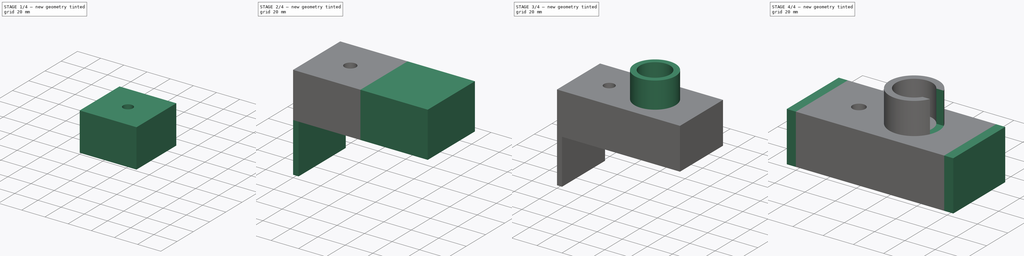
[diagram: build sequence overview — one tinted view per stage of 4, left to right]
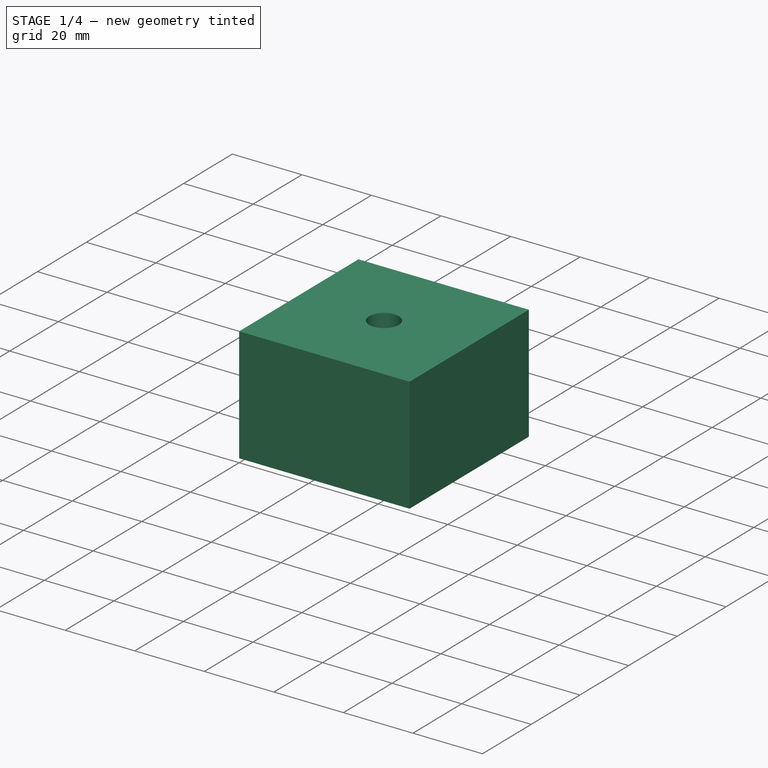
[diagram: stage 1 of 4 — iso view after this stage's code; geometry added in this stage tinted green]
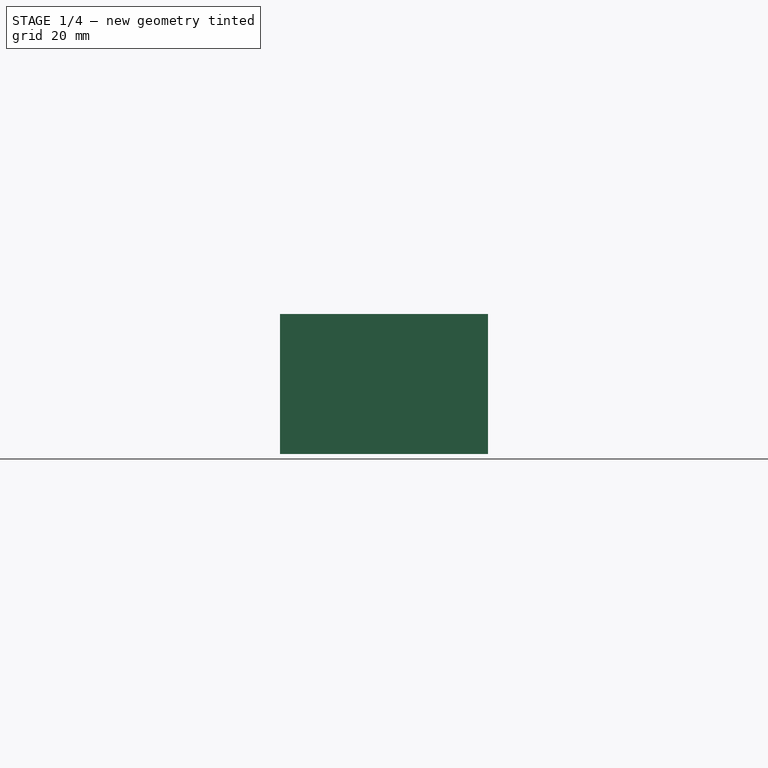
[diagram: stage 1 of 4 — front view after this stage's code; geometry added in this stage tinted green]
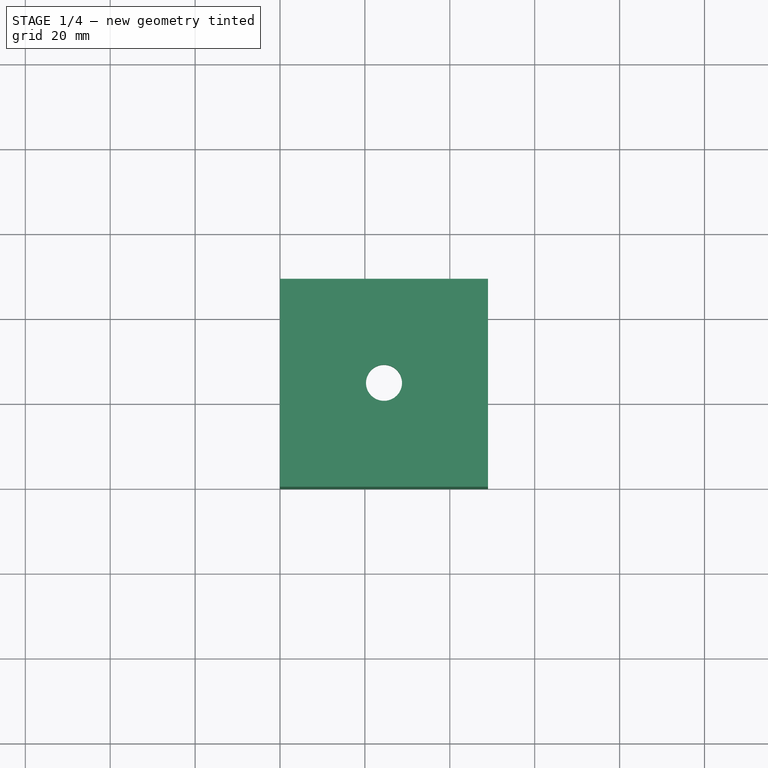
[diagram: stage 1 of 4 — top view after this stage's code; geometry added in this stage tinted green]
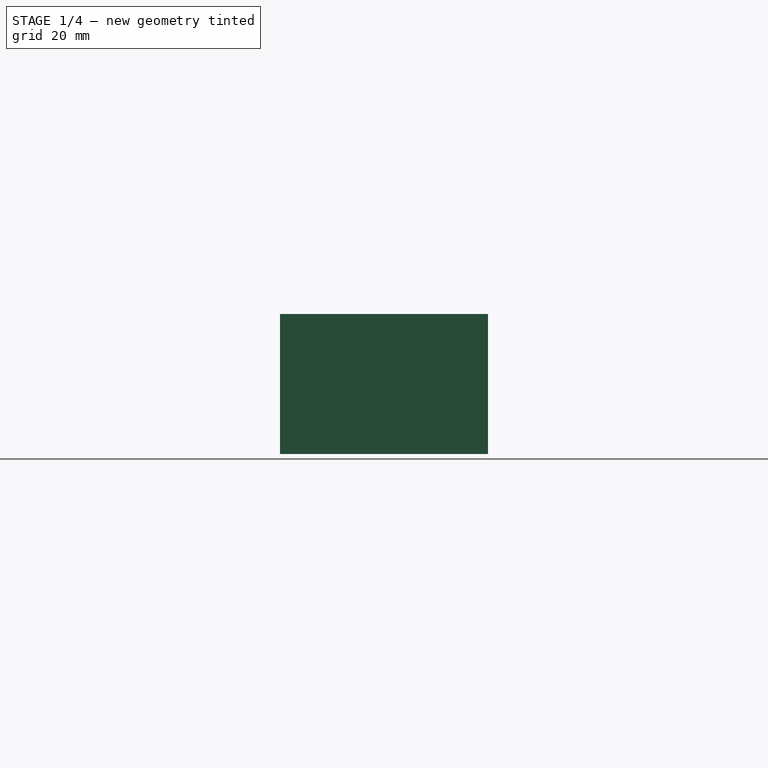
[diagram: stage 1 of 4 — right view after this stage's code; geometry added in this stage tinted green]
FCSTD DOCUMENT  (FreeCAD 0.18R4 (GitTag))
Label: Caja para engranes 1
License: All rights reserved
LicenseURL: http://en.wikipedia.org/wiki/All_rights_reserved
objects: Sketcher::SketchObject×14, PartDesign::Pocket×6, PartDesign::Pad×5, PartDesign::Body×1
note: 37 computed .brp shape members not serialized (recipe doc carries the construction recipe); baked Part::Feature solids carry a one-line shape summary decoded from their .brp

FEATURE [Sketcher::SketchObject] Sketch
  MapMode = 5
  Support = -> [XY_Plane]
  sketch-geometry (4):
    g0: LineSegment StartX=0 StartY=0 StartZ=0 EndX=49 EndY=0 EndZ=0
    g1: LineSegment StartX=49 StartY=0 StartZ=0 EndX=49 EndY=49 EndZ=0
    g2: LineSegment StartX=49 StartY=49 StartZ=0 EndX=0 EndY=49 EndZ=0
    g3: LineSegment StartX=0 StartY=49 StartZ=0 EndX=0 EndY=0 EndZ=0
  constraints (11):
    c: Coincident(g0,g1)
    c: Coincident(g1,g2)
    c: Coincident(g2,g3)
    c: Coincident(g3,g0)
    c: Horizontal(g0)
    c: Horizontal(g2)
    c: Vertical(g1)
    c: Vertical(g3)
    c: DistanceX(g0,g0) = 49
    c: DistanceY(g1,g1) = 49
    c: Coincident(g0,g-1)
FEATURE [PartDesign::Pad] Pad
  Length = 33
  Length2 = 100
  Profile = -> Sketch
  Type = 0
  expr: Length = 28 + 5
FEATURE [Sketcher::SketchObject] Sketch001
  ExternalGeometry = -> [Pad]
  MapMode = 5
  Placement = pos=(0,0,0) rot=(1,0,0;3.14159rad)
  Support = -> [Pad]
  sketch-geometry (6):
    g0: LineSegment StartX=45 StartY=-4 StartZ=0 EndX=4 EndY=-4 EndZ=0
    g1: LineSegment StartX=4 StartY=-4 StartZ=0 EndX=4 EndY=-45 EndZ=0
    g2: LineSegment StartX=4 StartY=-45 StartZ=0 EndX=45 EndY=-45 EndZ=0
    g3: LineSegment StartX=45 StartY=-45 StartZ=0 EndX=45 EndY=-4 EndZ=0
    g4: Circle [constr] CenterX=24.5 CenterY=-24.5 CenterZ=0 NormalX=0 NormalY=0 NormalZ=1 AngleXU=0 Radius=28.9914
    g5: Circle [constr] CenterX=24.5 CenterY=-24.5 CenterZ=0 NormalX=0 NormalY=0 NormalZ=1 AngleXU=0 Radius=34.6482
  constraints (17):
    c: Coincident(g0,g1)
    c: Coincident(g1,g2)
    c: Coincident(g2,g3)
    c: Coincident(g3,g0)
    c: Equal(g0,g1)
    c: Equal(g0,g2)
    c: Equal(g0,g3)
    c: PointOnObject(g0,g4)
    c: PointOnObject(g1,g4)
    c: PointOnObject(g2,g4)
    c: PointOnObject(g3,g4)
    c: Vertical(g3)
    c: DistanceX(g2,g2) = 41
    c: PointOnObject(g-4,g5)
    c: PointOnObject(g-3,g5)
    c: PointOnObject(g-1,g5)
    c: Coincident(g5,g4)
FEATURE [PartDesign::Pocket] Pocket
  BaseFeature = -> Pad
  Length = 28
  Length2 = 100
  Profile = -> Sketch001
  Type = 0
FEATURE [Sketcher::SketchObject] Sketch004
  MapMode = 5
  Placement = pos=(0,0,33) rot=(0,0,1;0rad)
  sketch-geometry (2):
    g0: Circle [constr] CenterX=24.5 CenterY=24.5 CenterZ=0 NormalX=0 NormalY=0 NormalZ=1 AngleXU=0 Radius=34.6482
    g1: Circle CenterX=24.5 CenterY=24.5 CenterZ=0 NormalX=0 NormalY=0 NormalZ=1 AngleXU=0 Radius=4.25
  constraints (2):
    c: PointOnObject(g-1,g0)
    c: Radius(g1) = 4.25
FEATURE [PartDesign::Pocket] Pocket002
  BaseFeature = -> Pocket
  Length = 5
  Length2 = 100
  Profile = -> Sketch004
  Type = 0
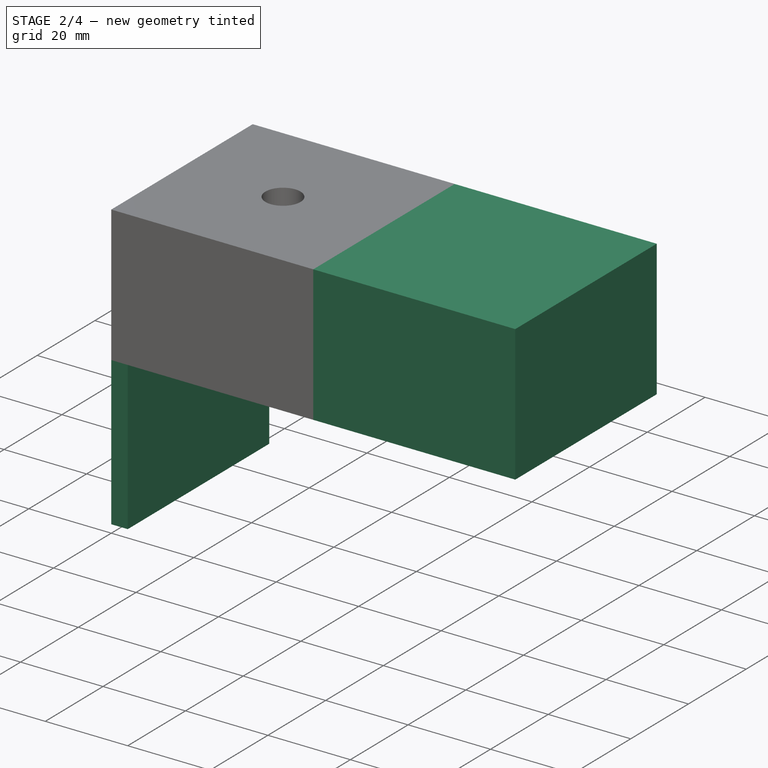
[diagram: stage 2 of 4 — iso view after this stage's code; geometry added in this stage tinted green]
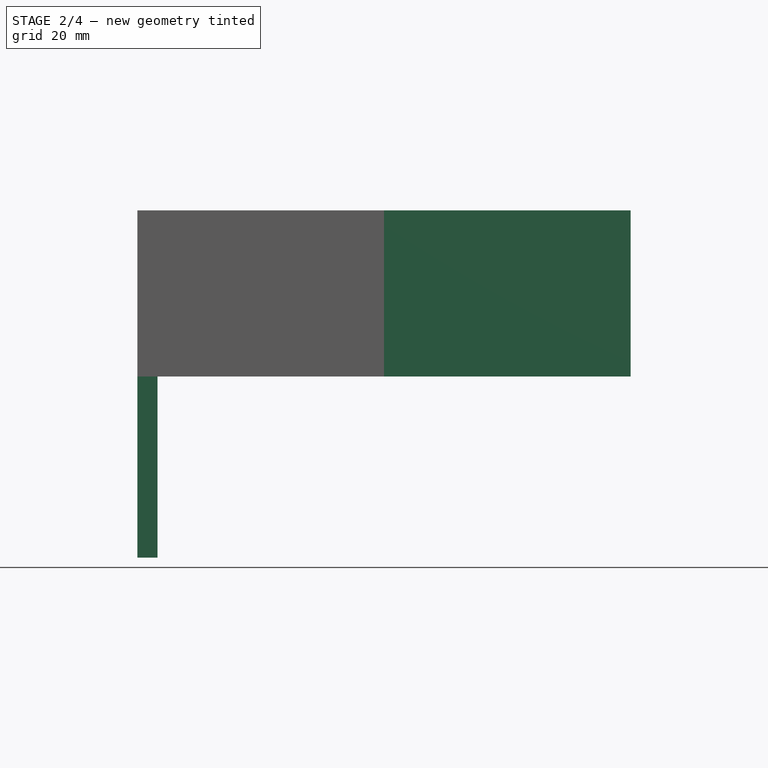
[diagram: stage 2 of 4 — front view after this stage's code; geometry added in this stage tinted green]
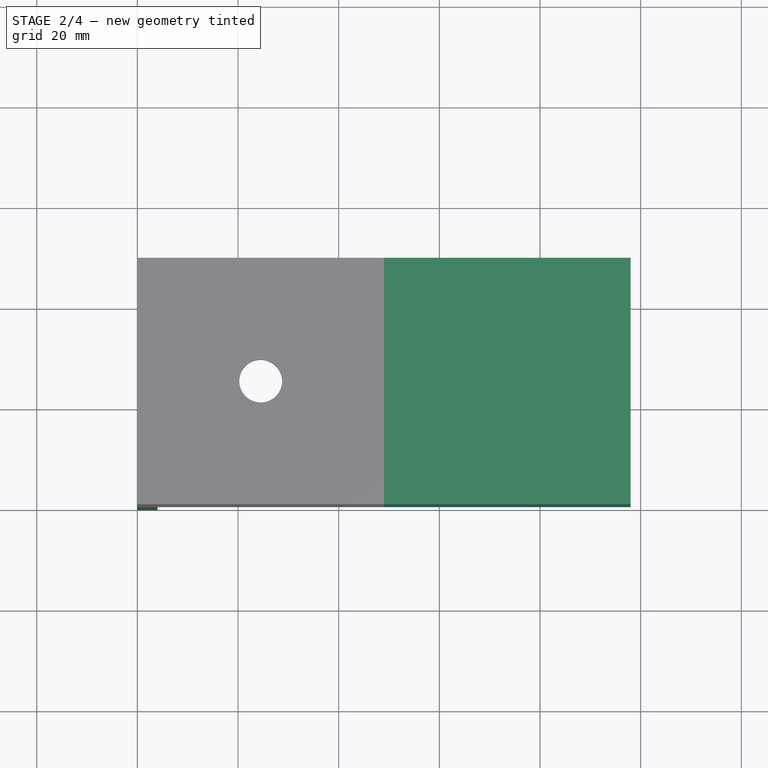
[diagram: stage 2 of 4 — top view after this stage's code; geometry added in this stage tinted green]
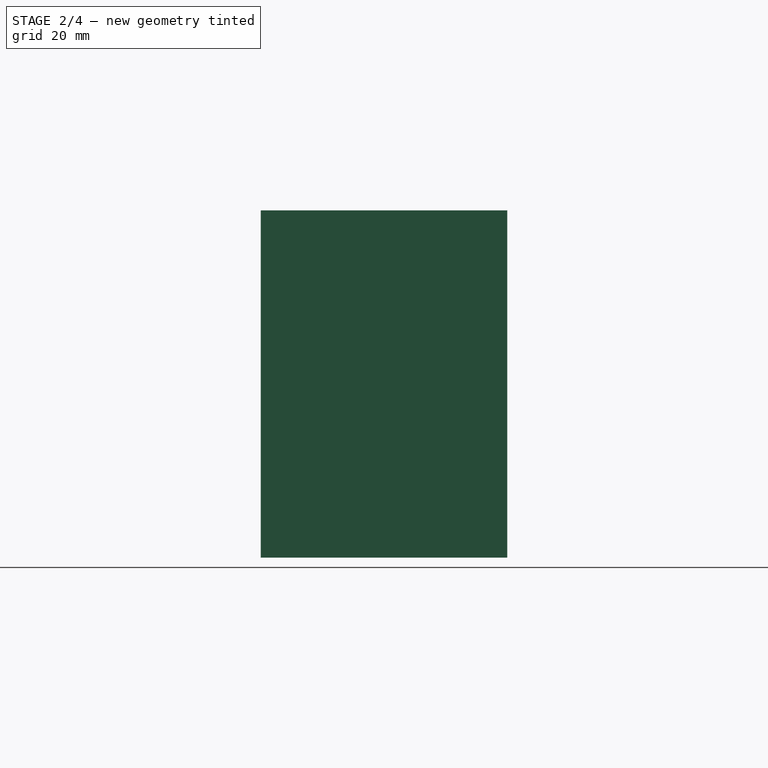
[diagram: stage 2 of 4 — right view after this stage's code; geometry added in this stage tinted green]
FEATURE [Sketcher::SketchObject] Sketch006
  MapMode = 5
  Placement = pos=(0,0,0) rot=(1,0,0;3.14159rad)
  sketch-geometry (4):
    g0: LineSegment StartX=0 StartY=0 StartZ=0 EndX=4 EndY=0 EndZ=0
    g1: LineSegment StartX=4 StartY=0 StartZ=0 EndX=4 EndY=-49 EndZ=0
    g2: LineSegment StartX=4 StartY=-49 StartZ=0 EndX=0 EndY=-49 EndZ=0
    g3: LineSegment StartX=0 StartY=-49 StartZ=0 EndX=0 EndY=0 EndZ=0
  constraints (10):
    c: Coincident(g0,g1)
    c: Coincident(g1,g2)
    c: Coincident(g2,g3)
    c: Coincident(g3,g0)
    c: Horizontal(g0)
    c: Horizontal(g2)
    c: Vertical(g1)
    c: Vertical(g3)
    c: DistanceY(g3,g3) = 49
    c: Coincident(g0,g-1)
FEATURE [PartDesign::Pad] Pad001
  BaseFeature = -> Pocket002
  Length = 36
  Length2 = 100
  Profile = -> Sketch006
  Type = 0
FEATURE [Sketcher::SketchObject] Sketch007
  ExternalGeometry = -> [Pad001]
  MapMode = 5
  Placement = pos=(49,0,0) rot=(0.57735,0.57735,0.57735;2.0944rad)
  Support = -> [Pad001]
  sketch-geometry (4):
    g0: LineSegment StartX=0 StartY=0 StartZ=0 EndX=49 EndY=0 EndZ=0
    g1: LineSegment StartX=49 StartY=0 StartZ=0 EndX=49 EndY=33 EndZ=0
    g2: LineSegment StartX=49 StartY=33 StartZ=0 EndX=0 EndY=33 EndZ=0
    g3: LineSegment StartX=0 StartY=33 StartZ=0 EndX=0 EndY=0 EndZ=0
  constraints (8):
    c: Coincident(g0,g1)
    c: Coincident(g1,g2)
    c: Coincident(g2,g3)
    c: Coincident(g3,g0)
    c: Horizontal(g0)
    c: Horizontal(g2)
    c: Vertical(g1)
    c: Vertical(g3)
FEATURE [PartDesign::Pad] Pad002
  BaseFeature = -> Pad001
  Length = 49
  Length2 = 100
  Profile = -> Sketch007
  Type = 0
FEATURE [Sketcher::SketchObject] Sketch008
  ExternalGeometry = -> [Pad002]
  MapMode = 5
  Placement = pos=(0,0,0) rot=(1,0,0;3.14159rad)
  Support = -> [Pad002]
  sketch-geometry (6):
    g0: Circle [constr] CenterX=73.5 CenterY=-24.5 CenterZ=0 NormalX=0 NormalY=0 NormalZ=1 AngleXU=0 Radius=34.6482
    g1: LineSegment StartX=94 StartY=-4 StartZ=0 EndX=53 EndY=-4 EndZ=0
    g2: LineSegment StartX=53 StartY=-4 StartZ=0 EndX=53 EndY=-45 EndZ=0
    g3: LineSegment StartX=53 StartY=-45 StartZ=0 EndX=94 EndY=-45 EndZ=0
    g4: LineSegment StartX=94 StartY=-45 StartZ=0 EndX=94 EndY=-4 EndZ=0
    g5: Circle [constr] CenterX=73.5 CenterY=-24.5 CenterZ=0 NormalX=0 NormalY=0 NormalZ=1 AngleXU=0 Radius=28.9914
  constraints (17):
    c: PointOnObject(g-3,g0)
    c: PointOnObject(g-3,g0)
    c: PointOnObject(g-4,g0)
    c: Coincident(g1,g2)
    c: Coincident(g2,g3)
    c: Coincident(g3,g4)
    c: Coincident(g4,g1)
    c: Equal(g1,g2)
    c: Equal(g1,g3)
    c: Equal(g1,g4)
    c: PointOnObject(g1,g5)
    c: PointOnObject(g2,g5)
    c: PointOnObject(g3,g5)
    c: PointOnObject(g4,g5)
    c: Vertical(g4)
    c: Coincident(g0,g5)
    c: DistanceX(g3,g3) = 41
FEATURE [PartDesign::Pocket] Pocket003
  BaseFeature = -> Pad002
  Length = 28
  Length2 = 100
  Profile = -> Sketch008
  Type = 0
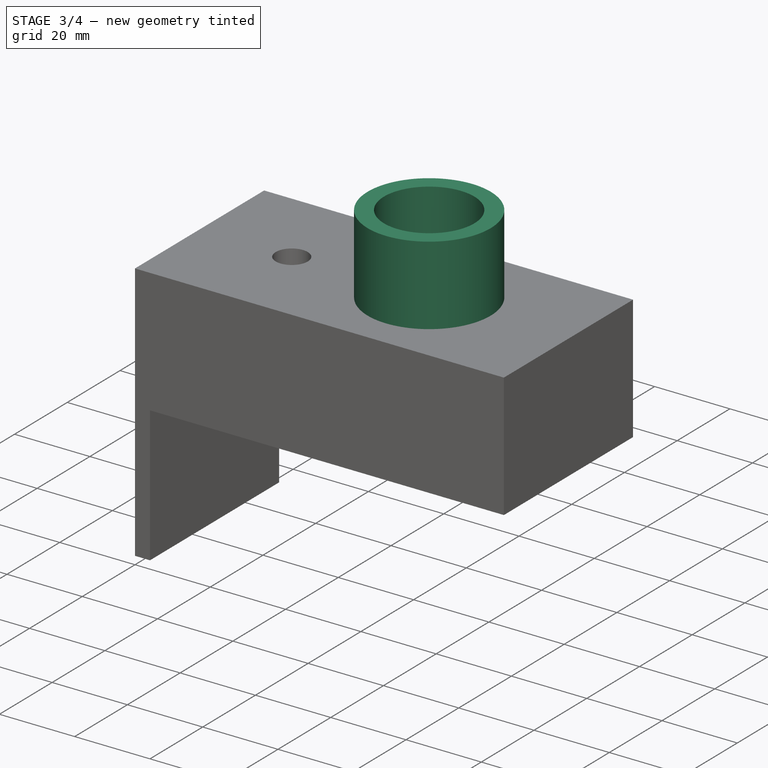
[diagram: stage 3 of 4 — iso view after this stage's code; geometry added in this stage tinted green]
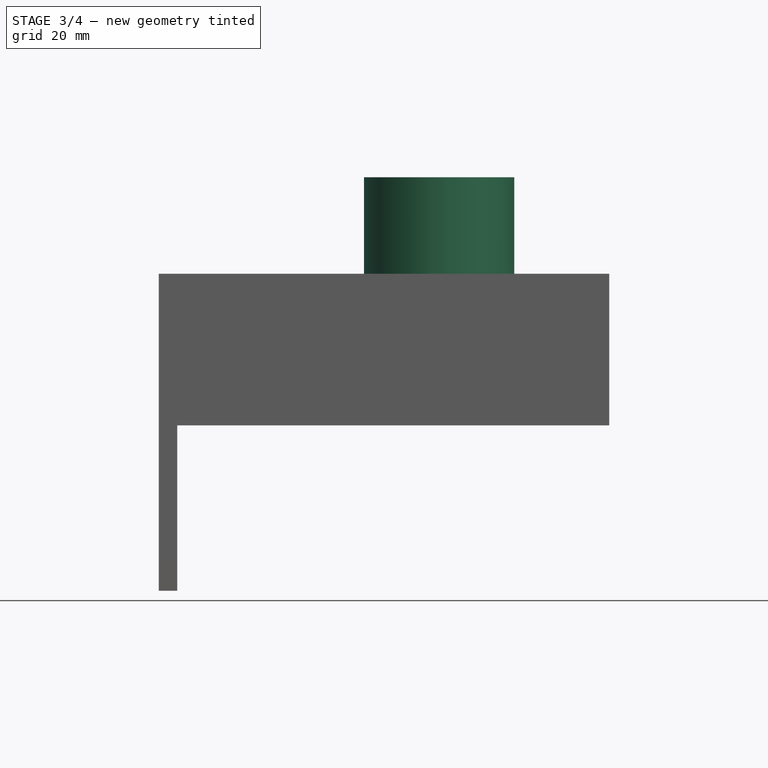
[diagram: stage 3 of 4 — front view after this stage's code; geometry added in this stage tinted green]
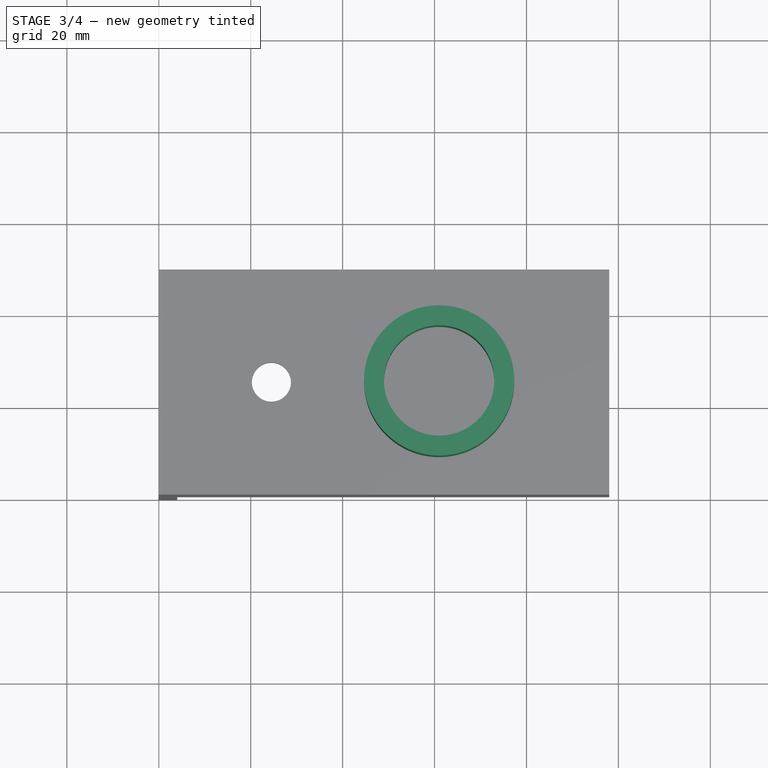
[diagram: stage 3 of 4 — top view after this stage's code; geometry added in this stage tinted green]
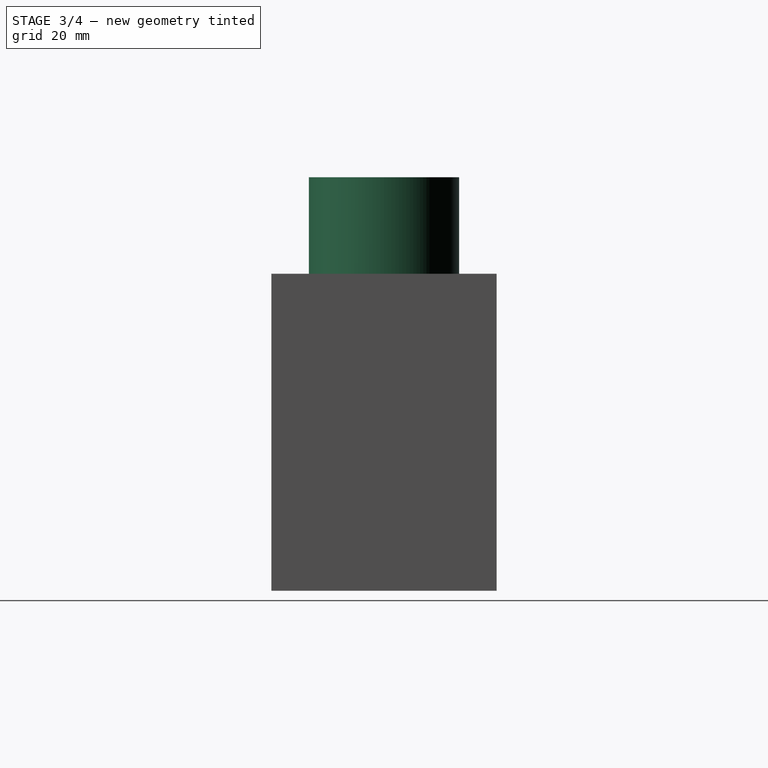
[diagram: stage 3 of 4 — right view after this stage's code; geometry added in this stage tinted green]
FEATURE [Sketcher::SketchObject] Sketch009
  ExternalGeometry = -> [Pocket003]
  MapMode = 5
  Placement = pos=(0,0,0) rot=(1,0,0;3.14159rad)
  Support = -> [Pocket003]
  sketch-geometry (4):
    g0: LineSegment StartX=45 StartY=-4 StartZ=0 EndX=53 EndY=-4 EndZ=0
    g1: LineSegment StartX=53 StartY=-4 StartZ=0 EndX=53 EndY=-45 EndZ=0
    g2: LineSegment StartX=53 StartY=-45 StartZ=0 EndX=45 EndY=-45 EndZ=0
    g3: LineSegment StartX=45 StartY=-45 StartZ=0 EndX=45 EndY=-4 EndZ=0
  constraints (10):
    c: Coincident(g0,g1)
    c: Coincident(g1,g2)
    c: Coincident(g2,g3)
    c: Coincident(g3,g0)
    c: Horizontal(g0)
    c: Horizontal(g2)
    c: Vertical(g1)
    c: Vertical(g3)
    c: Coincident(g-3,g0)
    c: Coincident(g1,g-4)
FEATURE [PartDesign::Pocket] Pocket004
  BaseFeature = -> Pocket003
  Length = 28
  Length2 = 100
  Profile = -> Sketch009
  Type = 0
FEATURE [Sketcher::SketchObject] Sketch010
  ExternalGeometry = -> [Pocket004]
  MapMode = 5
  Placement = pos=(0,0,33) rot=(0,0,1;0rad)
  Support = -> [Pocket004]
  sketch-geometry (2):
    g0: Circle [constr] CenterX=73.5 CenterY=24.5 CenterZ=0 NormalX=0 NormalY=0 NormalZ=1 AngleXU=0 Radius=34.6482
    g1: LineSegment [constr] StartX=73.5 StartY=25.8216 StartZ=0 EndX=41.7848 EndY=25.8216 EndZ=0
  constraints (4):
    c: PointOnObject(g-6,g0)
    c: PointOnObject(g-5,g0)
    c: PointOnObject(g-6,g0)
    c: Horizontal(g1)
FEATURE [Sketcher::SketchObject] Sketch011
  ExternalGeometry = -> [Pocket004]
  MapMode = 5
  Placement = pos=(0,0,33) rot=(0,0,1;0rad)
  Support = -> [Pocket004]
  expr: Constraints[4] = 49 / 2
  expr: Constraints[0] = 24 / 2
  sketch-geometry (4):
    g0: Circle CenterX=61 CenterY=24.5 CenterZ=0 NormalX=0 NormalY=0 NormalZ=1 AngleXU=0 Radius=12
    g1: Circle CenterX=61 CenterY=24.5 CenterZ=0 NormalX=0 NormalY=0 NormalZ=1 AngleXU=0 Radius=16.3474
    g2: LineSegment StartX=49 StartY=49 StartZ=0 EndX=49 EndY=24.5 EndZ=0
    g3: LineSegment [constr] StartX=49 StartY=24.5 StartZ=0 EndX=61 EndY=24.5 EndZ=0
  constraints (9):
    c: Radius(g0) = 12
    c: PointOnObject(g2,g-3)
    c: Coincident(g1,g0)
    c: Vertical(g2)
    c: DistanceY(g2,g2) = 24.5
    c: DistanceX(g3,g3) = 12
    c: Coincident(g3,g2)
    c: Horizontal(g3)
    c: Coincident(g0,g3)
FEATURE [PartDesign::Pad] Pad003
  BaseFeature = -> Pocket004
  Length = 21
  Length2 = 100
  Profile = -> Sketch011
  Type = 0
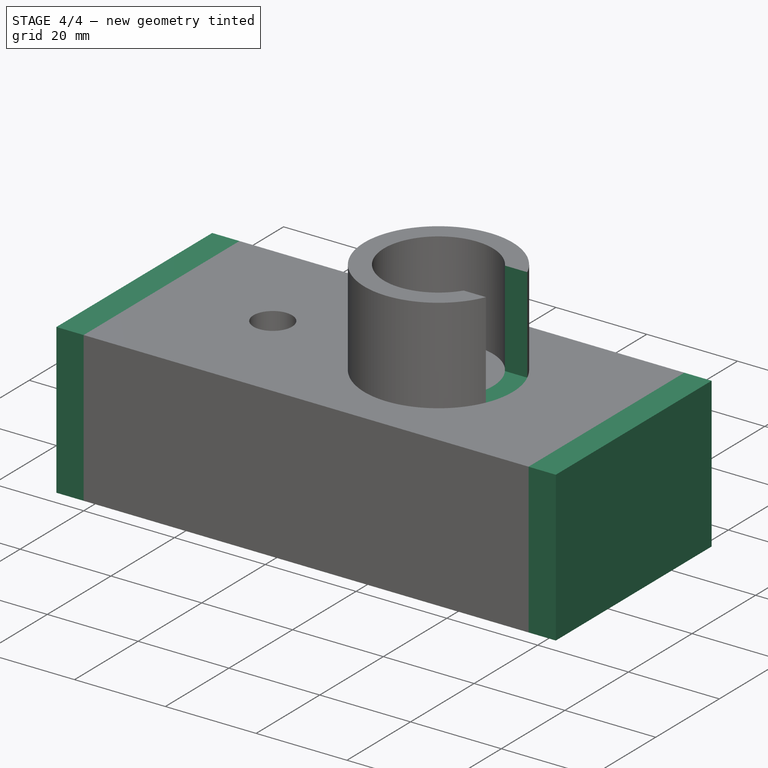
[diagram: stage 4 of 4 — iso view after this stage's code; geometry added in this stage tinted green]
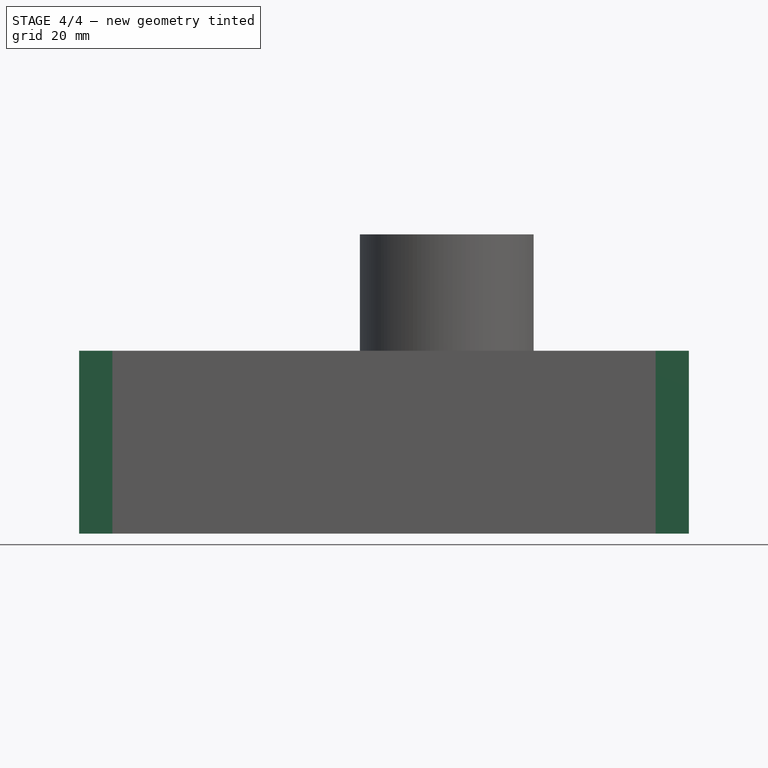
[diagram: stage 4 of 4 — front view after this stage's code; geometry added in this stage tinted green]
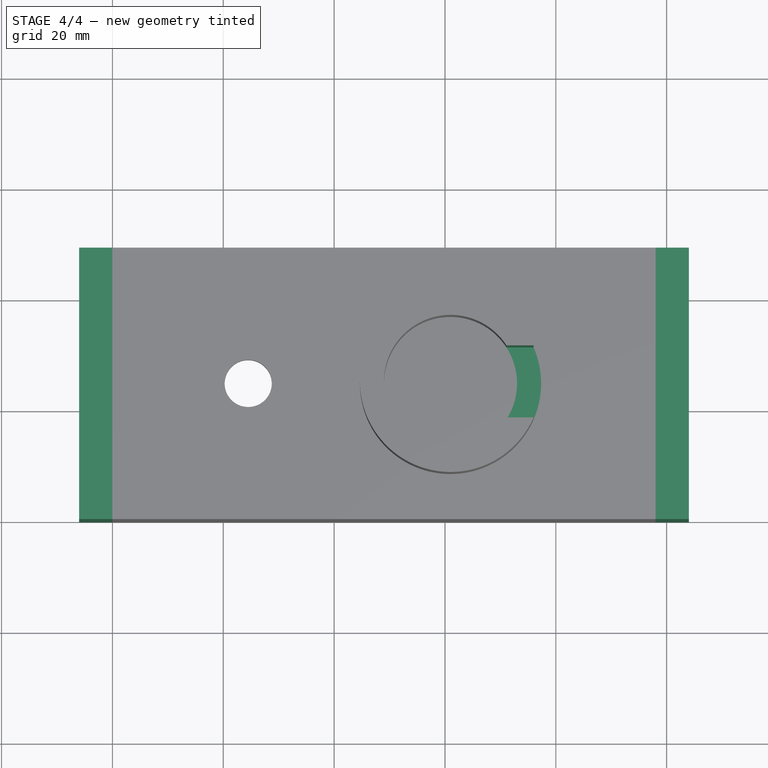
[diagram: stage 4 of 4 — top view after this stage's code; geometry added in this stage tinted green]
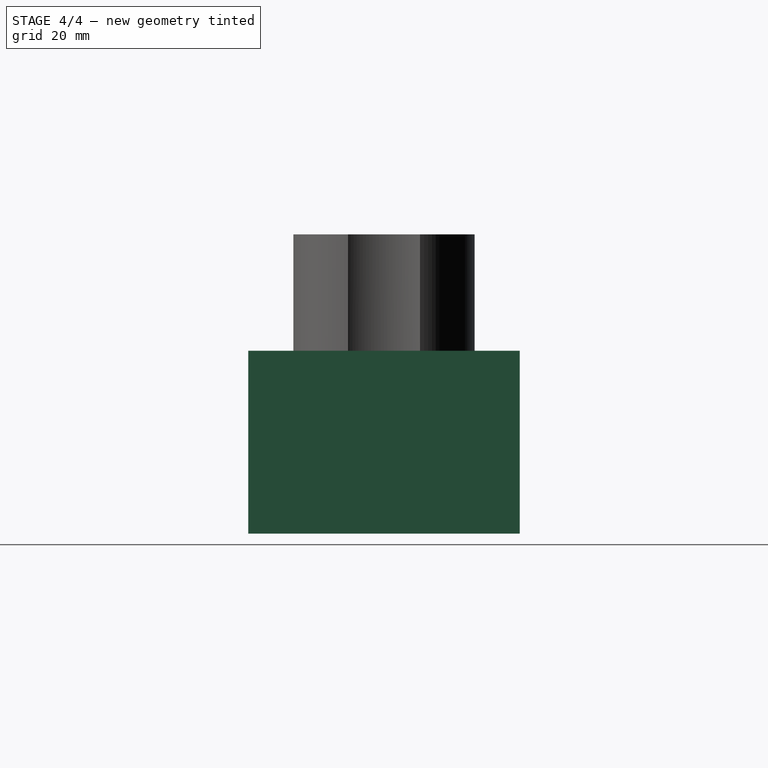
[diagram: stage 4 of 4 — right view after this stage's code; geometry added in this stage tinted green]
FEATURE [Sketcher::SketchObject] Sketch012
  ExternalGeometry = -> [Pad003]
  MapMode = 5
  Placement = pos=(0,0,33) rot=(0,0,1;0rad)
  Support = -> [Pad003]
  sketch-geometry (5):
    g0: LineSegment StartX=79.9801 StartY=31 StartZ=0 EndX=66.9801 EndY=31 EndZ=0
    g1: LineSegment StartX=66.9801 StartY=31 StartZ=0 EndX=66.9801 EndY=18 EndZ=0
    g2: LineSegment StartX=66.9801 StartY=18 StartZ=0 EndX=79.9801 EndY=18 EndZ=0
    g3: LineSegment StartX=79.9801 StartY=18 StartZ=0 EndX=79.9801 EndY=31 EndZ=0
    g4: Circle [constr] CenterX=73.4801 CenterY=24.5 CenterZ=0 NormalX=0 NormalY=0 NormalZ=1 AngleXU=0 Radius=9.19239
  constraints (14):
    c: Coincident(g0,g1)
    c: Coincident(g1,g2)
    c: Coincident(g2,g3)
    c: Coincident(g3,g0)
    c: Equal(g0,g1)
    c: Equal(g0,g2)
    c: Equal(g0,g3)
    c: PointOnObject(g0,g4)
    c: PointOnObject(g1,g4)
    c: PointOnObject(g2,g4)
    c: PointOnObject(g3,g4)
    c: Horizontal(g0)
    c: DistanceX(g0,g0) = 13
    c: DistanceY(g1,g-3) = 6.5
FEATURE [Sketcher::SketchObject] Sketch013
  MapMode = 5
  Placement = pos=(0,0,33) rot=(0,0,1;0rad)
  Support = -> [Pad003]
FEATURE [PartDesign::Pocket] Pocket005
  BaseFeature = -> Pad003
  Length = 22
  Length2 = 100
  Profile = -> Sketch012
  Reversed = true
  Type = 0
FEATURE [Sketcher::SketchObject] Sketch014
  MapMode = 5
  Placement = pos=(0,0,0) rot=(1,0,0;3.14159rad)
  Support = -> [Pocket005]
FEATURE [Sketcher::SketchObject] Sketch015
  ExternalGeometry = -> [Pocket005]
  MapMode = 5
  Placement = pos=(0,0,0) rot=(0.57735,-0.57735,-0.57735;2.0944rad)
  Support = -> [Pocket005]
  sketch-geometry (4):
    g0: LineSegment StartX=-49 StartY=-36 StartZ=0 EndX=0 EndY=-36 EndZ=0
    g1: LineSegment StartX=0 StartY=-36 StartZ=0 EndX=0 EndY=0 EndZ=0
    g2: LineSegment StartX=0 StartY=0 StartZ=0 EndX=-49 EndY=0 EndZ=0
    g3: LineSegment StartX=-49 StartY=0 StartZ=0 EndX=-49 EndY=-36 EndZ=0
  constraints (8):
    c: Coincident(g0,g1)
    c: Coincident(g1,g2)
    c: Coincident(g2,g3)
    c: Coincident(g3,g0)
    c: Horizontal(g0)
    c: Horizontal(g2)
    c: Vertical(g1)
    c: Vertical(g3)
FEATURE [PartDesign::Pocket] Pocket006
  BaseFeature = -> Pocket005
  Length = 4
  Length2 = 100
  Profile = -> Sketch015
  Type = 0
FEATURE [Sketcher::SketchObject] Sketch016
  ExternalGeometry = -> [Pocket006]
  MapMode = 5
  Placement = pos=(0,0,0) rot=(1,0,0;3.14159rad)
  Support = -> [Pocket006]
  sketch-geometry (8):
    g0: LineSegment StartX=4 StartY=-49 StartZ=0 EndX=-6 EndY=-49 EndZ=0
    g1: LineSegment StartX=-6 StartY=-49 StartZ=0 EndX=-6 EndY=0 EndZ=0
    g2: LineSegment StartX=-6 StartY=0 StartZ=0 EndX=4 EndY=0 EndZ=0
    g3: LineSegment StartX=4 StartY=0 StartZ=0 EndX=4 EndY=-49 EndZ=0
    g4: LineSegment StartX=104 StartY=-49 StartZ=0 EndX=94 EndY=-49 EndZ=0
    g5: LineSegment StartX=94 StartY=-49 StartZ=0 EndX=94 EndY=7.1e-15 EndZ=0
    g6: LineSegment StartX=94 StartY=4.4e-15 StartZ=0 EndX=104 EndY=4.4e-15 EndZ=0
    g7: LineSegment StartX=104 StartY=4.4e-15 StartZ=0 EndX=104 EndY=-49 EndZ=0
  constraints (23):
    c: Coincident(g0,g1)
    c: Coincident(g1,g2)
    c: Coincident(g2,g3)
    c: Coincident(g3,g0)
    c: Horizontal(g0)
    c: Horizontal(g2)
    c: Vertical(g1)
    c: Vertical(g3)
    c: Coincident(g0,g-3)
    c: PointOnObject(g-1,g2)
    c: DistanceX(g0,g0) = 10
    c: Coincident(g4,g5)
    c: Coincident(g5,g6)
    c: Coincident(g6,g7)
    c: Coincident(g7,g4)
    c: Horizontal(g4)
    c: Horizontal(g6)
    c: Vertical(g5)
    c: Vertical(g7)
    c: PointOnObject(g-7,g5)
    c: PointOnObject(g4,g-5)
    c: DistanceX(g6,g6) = 10
    c: PointOnObject(g-6,g6)
FEATURE [PartDesign::Pad] Pad004
  BaseFeature = -> Pocket006
  Length = 33
  Length2 = 100
  Profile = -> Sketch016
  Reversed = true
  Type = 0
FEATURE [PartDesign::Body] Body
  Group = -> [Sketch,Pad,Sketch001,Pocket,Sketch004,Pocket002,Sketch006,Pad001,Sketch007,Pad002,Sketch008,Pocket003,Sketch009,Pocket004,Sketch010,Sketch011,Pad003,Sketch012,Sketch013,Pocket005,Sketch014,Sketch015,Pocket006,Sketch016,Pad004]
  Origin = -> Origin
  Tip = -> Pad004
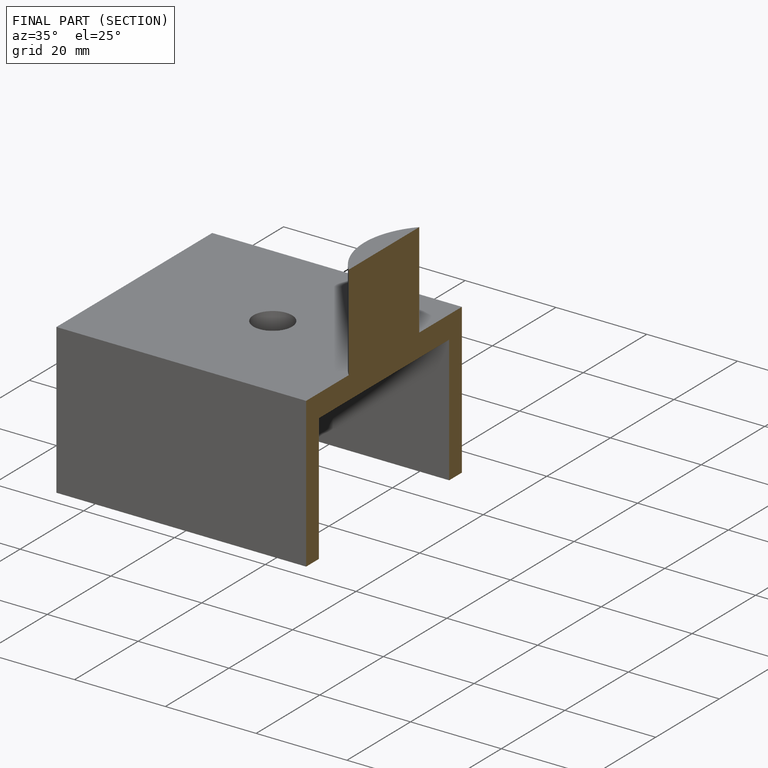
[diagram: finished part — half-section view (interior)]
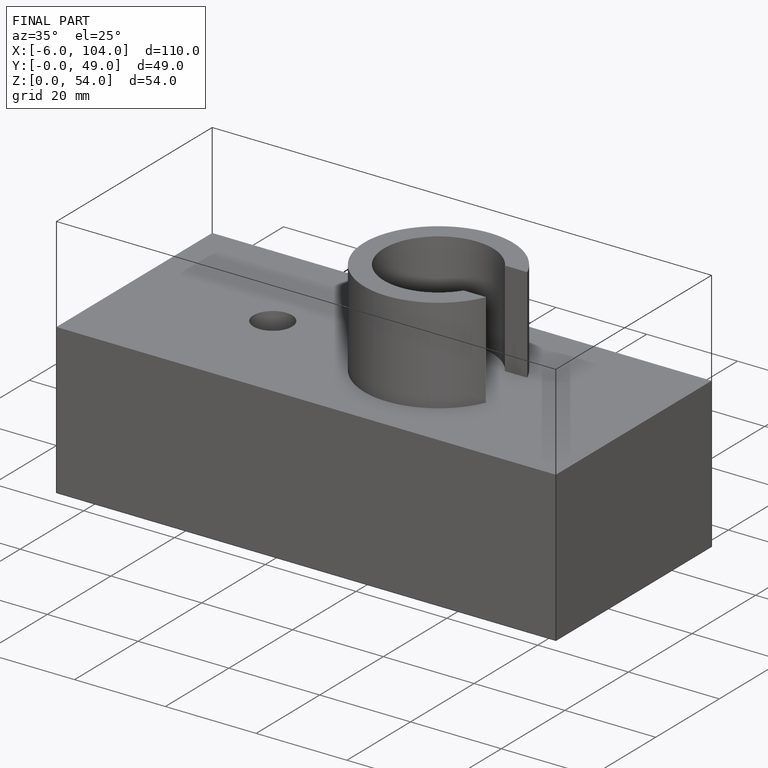
[diagram: finished part — iso view with bounding-box wireframe]
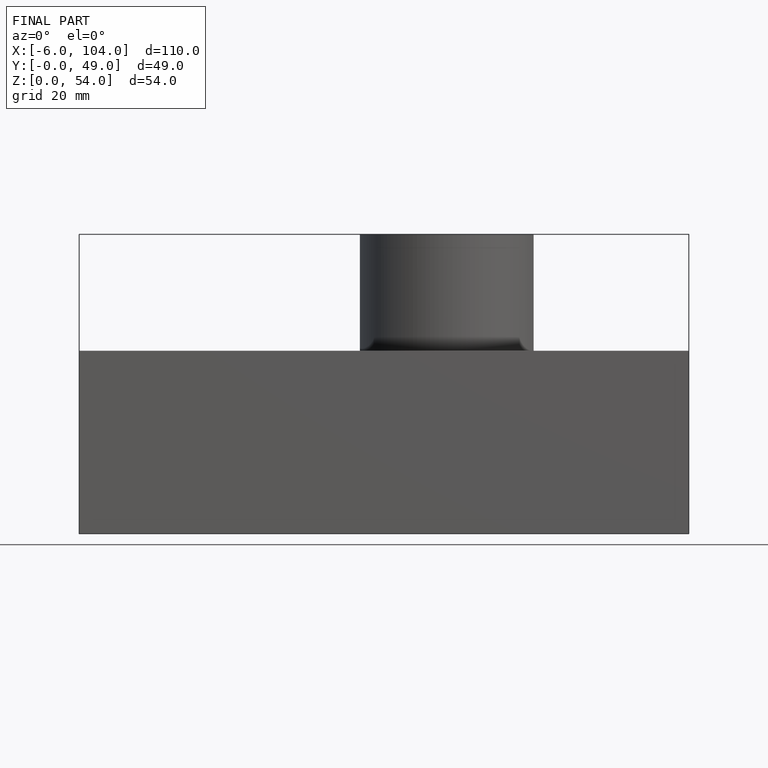
[diagram: finished part — front view with bounding-box wireframe]
